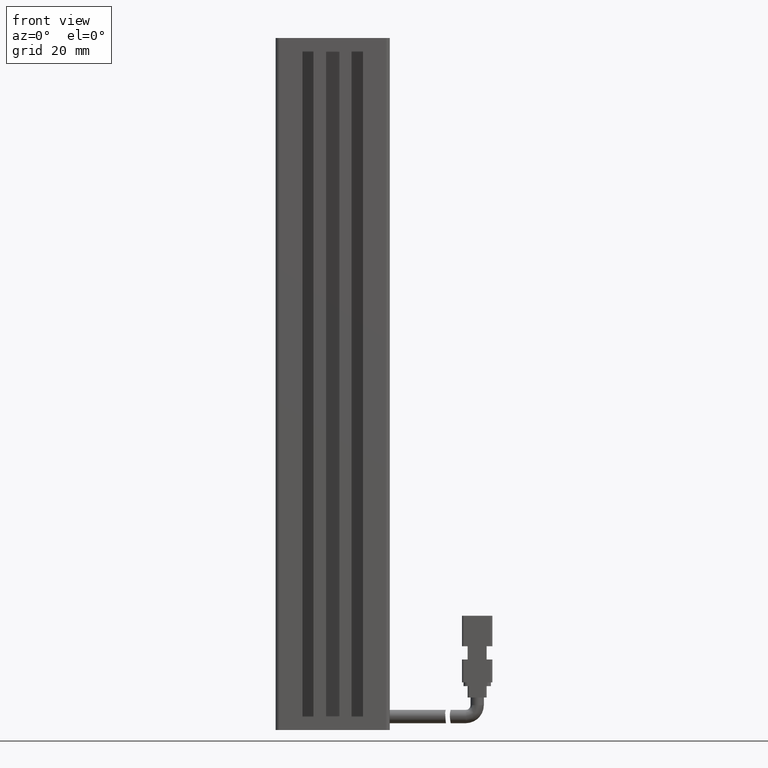
[diagram: clean part render]
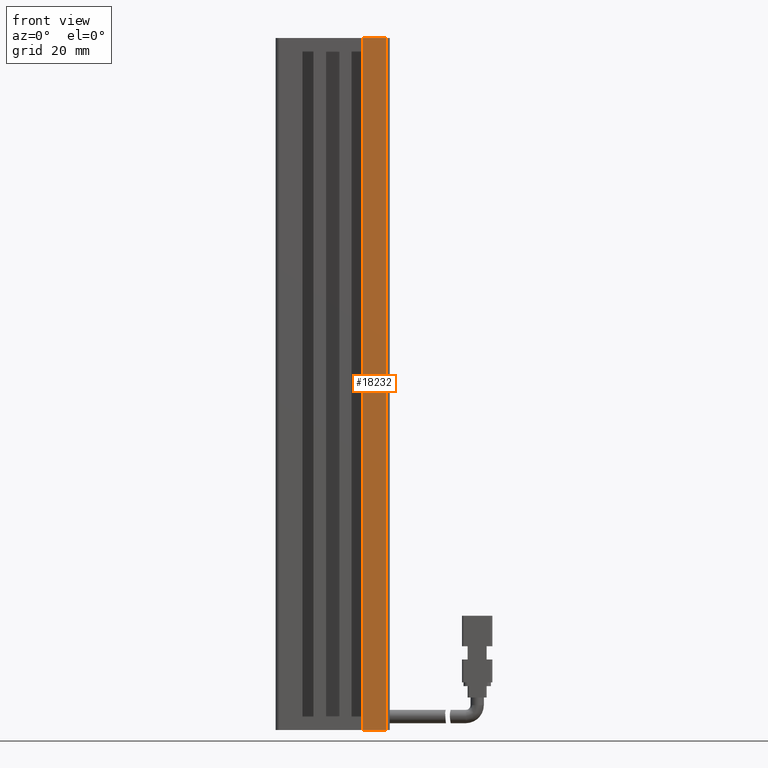
[diagram: same view with one face highlighted and labeled with its STEP entity id]
A machine part, front view. The second image highlights one B-rep face of the part: STEP entity #18232.
In plain terms, the highlighted planar face has unit normal (0, 1, -0).
Its self-contained STEP definition (entity closure, byte-faithful):
#482 = DIRECTION ( 'NONE',  ( 3.614007241618344300E-016, 1.000000000000000000, -0.0000000000000000000 ) ) ;
#1370 = VERTEX_POINT ( 'NONE', #39260 ) ;
#3654 = EDGE_CURVE ( 'NONE', #41741, #15912, #32555, .T. ) ;
#3658 = DIRECTION ( 'NONE',  ( 1.000000000000000000, 0.0000000000000000000, 0.0000000000000000000 ) ) ;
#3687 = PLANE ( 'NONE',  #24340 ) ;
#3758 = VERTEX_POINT ( 'NONE', #30931 ) ;
#4826 = VECTOR ( 'NONE', #19782, 1000.000000000000000 ) ;
#4909 = CARTESIAN_POINT ( 'NONE',  ( 54.92537974683542500, 10.69594479660386800, -24.00000000000000700 ) ) ;
#7022 = LINE ( 'NONE', #43103, #15875 ) ;
#7674 = VECTOR ( 'NONE', #3658, 1000.000000000000000 ) ;
#12795 = CARTESIAN_POINT ( 'NONE',  ( 48.92537974683541800, 10.69594479660387000, -24.00000000000000700 ) ) ;
#15875 = VECTOR ( 'NONE', #19535, 1000.000000000000000 ) ;
#15912 = VERTEX_POINT ( 'NONE', #40419 ) ;
#16173 = DIRECTION ( 'NONE',  ( 0.0000000000000000000, 0.0000000000000000000, 1.000000000000000000 ) ) ;
#18232 = ADVANCED_FACE ( 'NONE', ( #22403 ), #3687, .F. ) ;
#18998 = EDGE_CURVE ( 'NONE', #1370, #3758, #24263, .T. ) ;
#19535 = DIRECTION ( 'NONE',  ( 1.000000000000000000, 0.0000000000000000000, 0.0000000000000000000 ) ) ;
#19782 = DIRECTION ( 'NONE',  ( -0.0000000000000000000, -0.0000000000000000000, -1.000000000000000000 ) ) ;
#20264 = CARTESIAN_POINT ( 'NONE',  ( 40.92537974683542500, 10.69594479660387000, -24.00000000000000700 ) ) ;
#20347 = ORIENTED_EDGE ( 'NONE', *, *, #24085, .F. ) ;
#20463 = CARTESIAN_POINT ( 'NONE',  ( 40.92537974683542500, 10.69594479660387300, -24.00000000000000700 ) ) ;
#22105 = EDGE_LOOP ( 'NONE', ( #23991, #20347, #37554, #31946 ) ) ;
#22403 = FACE_OUTER_BOUND ( 'NONE', #22105, .T. ) ;
#22858 = CARTESIAN_POINT ( 'NONE',  ( 54.92537974683542500, 10.69594479660386800, -24.00000000000000700 ) ) ;
#23815 = DIRECTION ( 'NONE',  ( -1.000000000000000000, 3.614007241618344300E-016, 0.0000000000000000000 ) ) ;
#23991 = ORIENTED_EDGE ( 'NONE', *, *, #3654, .F. ) ;
#24085 = EDGE_CURVE ( 'NONE', #3758, #41741, #34390, .T. ) ;
#24263 = LINE ( 'NONE', #12795, #32131 ) ;
#24340 = AXIS2_PLACEMENT_3D ( 'NONE', #20463, #482, #23815 ) ;
#30931 = CARTESIAN_POINT ( 'NONE',  ( 48.92537974683541800, 10.69594479660387000, -23.99999999999999300 ) ) ;
#31946 = ORIENTED_EDGE ( 'NONE', *, *, #43223, .T. ) ;
#32131 = VECTOR ( 'NONE', #16173, 1000.000000000000000 ) ;
#32555 = LINE ( 'NONE', #22858, #4826 ) ;
#34390 = LINE ( 'NONE', #20264, #7674 ) ;
#37554 = ORIENTED_EDGE ( 'NONE', *, *, #18998, .F. ) ;
#39260 = CARTESIAN_POINT ( 'NONE',  ( 48.92537974683541800, 10.69594479660387000, -206.0000000000000300 ) ) ;
#40419 = CARTESIAN_POINT ( 'NONE',  ( 54.92537974683542500, 10.69594479660386800, -206.0000000000000300 ) ) ;
#41741 = VERTEX_POINT ( 'NONE', #4909 ) ;
#43103 = CARTESIAN_POINT ( 'NONE',  ( 40.92537974683542500, 10.69594479660387000, -206.0000000000000300 ) ) ;
#43223 = EDGE_CURVE ( 'NONE', #1370, #15912, #7022, .T. ) ;